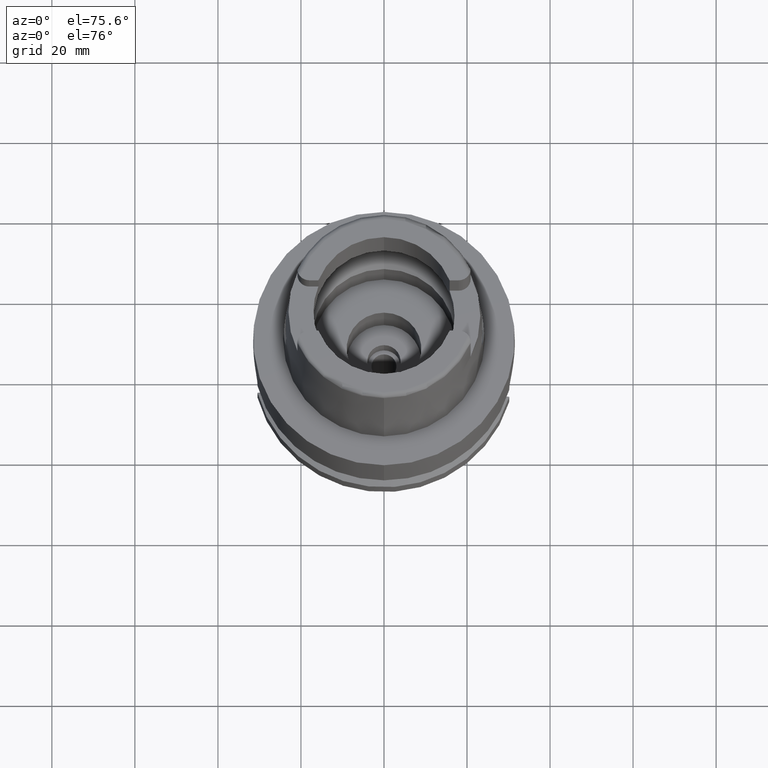
[diagram: clean part render]
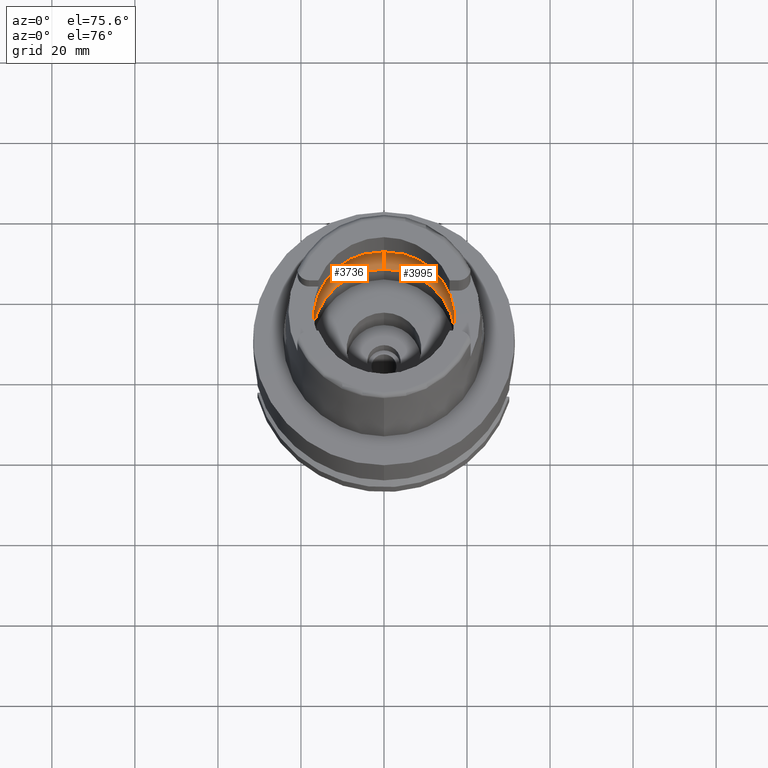
[diagram: same view with one multi-face feature highlighted, each face labeled with its STEP entity id]
A machine part, auxiliary view. The highlighted faces form ONE feature: a constant-radius fillet chain: 2 tangent blend faces with common blend radius 8 mm. The faces share edges in the B-rep.
Their STEP definitions:
[1] entity #3995 (Torus):
#24 = EDGE_CURVE ( 'NONE', #3711, #254, #3936, .T. ) ;
#30 = CIRCLE ( 'NONE', #2808, 20.00000000000000000 ) ;
#146 = CARTESIAN_POINT ( 'NONE',  ( 19.92466861724647842, 1.358322854854825179, 5.504643156173055552 ) ) ;
#169 = DIRECTION ( 'NONE',  ( 0.0000000000000000000, 0.0000000000000000000, -1.000000000000000000 ) ) ;
#173 = CARTESIAN_POINT ( 'NONE',  ( 19.88058488114089428, 2.158463974390028017, 5.925241924213342060 ) ) ;
#207 = AXIS2_PLACEMENT_3D ( 'NONE', #535, #5161, #3021 ) ;
#254 = VERTEX_POINT ( 'NONE', #5143 ) ;
#535 = CARTESIAN_POINT ( 'NONE',  ( 0.0000000000000000000, 1.300407714776999850E-14, 6.186348233825000875 ) ) ;
#610 = CARTESIAN_POINT ( 'NONE',  ( 19.84575864665999845, -2.479085262489999941, 6.186348233825000875 ) ) ;
#655 = DIRECTION ( 'NONE',  ( 0.0000000000000000000, 0.6562500000000006661, -0.7545435292281016393 ) ) ;
#726 = CIRCLE ( 'NONE', #3933, 7.999999999999992895 ) ;
#741 = CARTESIAN_POINT ( 'NONE',  ( 0.0000000000000000000, -20.00000000000000000, 6.186348233825000875 ) ) ;
#746 = CARTESIAN_POINT ( 'NONE',  ( 19.94501428475999916, -0.2480409057309866105, 5.249999999999999112 ) ) ;
#774 = EDGE_CURVE ( 'NONE', #3711, #2741, #2235, .T. ) ;
#824 = DIRECTION ( 'NONE',  ( 0.0000000000000000000, -1.000000000000000000, 0.0000000000000000000 ) ) ;
#857 = CARTESIAN_POINT ( 'NONE',  ( 19.94501428475999916, 0.0000000000000000000, 5.250000000000000000 ) ) ;
#1019 = ORIENTED_EDGE ( 'NONE', *, *, #774, .T. ) ;
#1040 = DIRECTION ( 'NONE',  ( 0.0000000000000000000, 1.000000000000000000, 0.0000000000000000000 ) ) ;
#1102 = CARTESIAN_POINT ( 'NONE',  ( 0.0000000000000000000, 1.300407714776999850E-14, 0.1500000000000999700 ) ) ;
#1115 = EDGE_CURVE ( 'NONE', #5113, #4521, #4823, .T. ) ;
#1205 = CARTESIAN_POINT ( 'NONE',  ( 19.92705252129803029, -1.287137646786902012, 5.477775250979194155 ) ) ;
#1227 = CARTESIAN_POINT ( 'NONE',  ( 19.94340172595015304, -0.4850964368296419305, 5.274618258025038919 ) ) ;
#1346 = CARTESIAN_POINT ( 'NONE',  ( 19.92546248860871927, 1.335239979082043948, 5.495763251848394759 ) ) ;
#1438 = CARTESIAN_POINT ( 'NONE',  ( 19.84575864665999845, 2.479085262491000030, 6.186348233825000875 ) ) ;
#1513 = ORIENTED_EDGE ( 'NONE', *, *, #4915, .F. ) ;
#1551 = EDGE_CURVE ( 'NONE', #4521, #2741, #1792, .T. ) ;
#1792 = CIRCLE ( 'NONE', #207, 20.00000000000001421 ) ;
#1832 = CARTESIAN_POINT ( 'NONE',  ( 19.92207737119581168, 1.430228553718336348, 5.533213232082355937 ) ) ;
#1888 = EDGE_CURVE ( 'NONE', #3442, #5113, #3426, .T. ) ;
#2051 = CARTESIAN_POINT ( 'NONE',  ( 19.93292009368618878, -1.081811675276309170, 5.409026469001385173 ) ) ;
#2067 = CARTESIAN_POINT ( 'NONE',  ( 0.0000000000000000000, -12.00000000000000000, 6.186348233825000875 ) ) ;
#2100 = CARTESIAN_POINT ( 'NONE',  ( 0.0000000000000000000, 1.300407714776999850E-14, 6.186348233825000875 ) ) ;
#2105 = CARTESIAN_POINT ( 'NONE',  ( 19.92839737014920942, -1.244570694301886604, 5.462384987445608076 ) ) ;
#2175 = TOROIDAL_SURFACE ( 'NONE', #2459, 12.00000000000000000, 8.000000000000000000 ) ;
#2226 = CARTESIAN_POINT ( 'NONE',  ( 19.84575864665999845, 2.479085262491000030, 6.186348233825000875 ) ) ;
#2230 = CARTESIAN_POINT ( 'NONE',  ( 19.92517033494197776, 1.343817989907872601, 5.499041037985621827 ) ) ;
#2235 = CIRCLE ( 'NONE', #5162, 7.999999999999992895 ) ;
#2459 = AXIS2_PLACEMENT_3D ( 'NONE', #2100, #2610, #4244 ) ;
#2535 = CARTESIAN_POINT ( 'NONE',  ( 19.84575864665999845, -2.479085262489999941, 6.186348233825000875 ) ) ;
#2610 = DIRECTION ( 'NONE',  ( 0.0000000000000000000, 0.0000000000000000000, -1.000000000000000000 ) ) ;
#2655 = CARTESIAN_POINT ( 'NONE',  ( 19.94501428475999916, 0.4961173928737935279, 5.250000000000000888 ) ) ;
#2741 = VERTEX_POINT ( 'NONE', #741 ) ;
#2808 = AXIS2_PLACEMENT_3D ( 'NONE', #3979, #169, #1040 ) ;
#2857 = ORIENTED_EDGE ( 'NONE', *, *, #3548, .F. ) ;
#2926 = CARTESIAN_POINT ( 'NONE',  ( 19.92646198462450258, -1.305240071194263773, 5.484478754908657550 ) ) ;
#2953 = CARTESIAN_POINT ( 'NONE',  ( 19.93654835100833367, -0.9262716855155007645, 5.364597633136126476 ) ) ;
#3021 = DIRECTION ( 'NONE',  ( 0.9922879323327794543, -0.1239542631244973381, 0.0000000000000000000 ) ) ;
#3163 = CARTESIAN_POINT ( 'NONE',  ( 19.86453694704406558, 2.328759808639310869, 6.053897721753374483 ) ) ;
#3293 = CARTESIAN_POINT ( 'NONE',  ( 19.93856404952061823, -0.8186975846318078620, 5.338708399480539768 ) ) ;
#3317 = ORIENTED_EDGE ( 'NONE', *, *, #24, .F. ) ;
#3426 = B_SPLINE_CURVE_WITH_KNOTS ( 'NONE', 3,
 ( #1438, #3163, #173, #4427, #3579, #4852, #3958, #1832, #3462, #146, #2230, #1346, #5259, #2655, #4790 ),
 .UNSPECIFIED., .F., .F.,
 ( 4, 2, 2, 1, 1, 1, 2, 2, 4 ),
 ( 0.0000000000000000000, 0.2500000000000076050, 0.3750000000000112688, 0.4375000000000131006, 0.4687500000000139333, 0.4843750000000144329, 0.4921875000000146549, 0.5000000000000147660, 1.000000000000000000 ),
 .UNSPECIFIED. ) ;
#3442 = VERTEX_POINT ( 'NONE', #2226 ) ;
#3462 = CARTESIAN_POINT ( 'NONE',  ( 19.92390804158324613, 1.380020403602153722, 5.513101011347385061 ) ) ;
#3548 = EDGE_CURVE ( 'NONE', #3586, #3442, #30, .T. ) ;
#3575 = CARTESIAN_POINT ( 'NONE',  ( 0.0000000000000000000, 20.00000000000000000, 6.186348233825000875 ) ) ;
#3579 = CARTESIAN_POINT ( 'NONE',  ( 19.90653742518825453, 1.770129897938285568, 5.691947325584132855 ) ) ;
#3586 = VERTEX_POINT ( 'NONE', #3575 ) ;
#3711 = VERTEX_POINT ( 'NONE', #5227 ) ;
#3933 = AXIS2_PLACEMENT_3D ( 'NONE', #4083, #4209, #655 ) ;
#3936 = CIRCLE ( 'NONE', #4730, 17.25000000000000000 ) ;
#3958 = CARTESIAN_POINT ( 'NONE',  ( 19.91819205506146773, 1.528957928330905380, 5.574902649599744464 ) ) ;
#3979 = CARTESIAN_POINT ( 'NONE',  ( 0.0000000000000000000, 1.300407714776999850E-14, 6.186348233825000875 ) ) ;
#3995 = ADVANCED_FACE ( 'NONE', ( #4719 ), #2175, .F. ) ;
#4083 = CARTESIAN_POINT ( 'NONE',  ( 0.0000000000000000000, 12.00000000000000000, 6.186348233825000875 ) ) ;
#4149 = CARTESIAN_POINT ( 'NONE',  ( 19.94501428475999916, 0.0000000000000000000, 5.250000000000000000 ) ) ;
#4209 = DIRECTION ( 'NONE',  ( 1.000000000000000000, 0.0000000000000000000, 0.0000000000000000000 ) ) ;
#4244 = DIRECTION ( 'NONE',  ( 0.0000000000000000000, -1.000000000000000000, 0.0000000000000000000 ) ) ;
#4427 = CARTESIAN_POINT ( 'NONE',  ( 19.90056123285527789, 1.871176222693615943, 5.748254233190306373 ) ) ;
#4453 = ORIENTED_EDGE ( 'NONE', *, *, #1115, .F. ) ;
#4514 = DIRECTION ( 'NONE',  ( 0.0000000000000000000, 0.0000000000000000000, 1.000000000000000000 ) ) ;
#4521 = VERTEX_POINT ( 'NONE', #610 ) ;
#4556 = DIRECTION ( 'NONE',  ( -1.000000000000000000, 0.0000000000000000000, 0.0000000000000000000 ) ) ;
#4602 = DIRECTION ( 'NONE',  ( 0.0000000000000000000, -0.6562500000000006661, -0.7545435292281016393 ) ) ;
#4612 = CARTESIAN_POINT ( 'NONE',  ( 19.92590906856741739, -1.321975393466675808, 5.490734853381008307 ) ) ;
#4620 = ORIENTED_EDGE ( 'NONE', *, *, #1888, .F. ) ;
#4640 = CARTESIAN_POINT ( 'NONE',  ( 19.93095478763670059, -1.158129320264685180, 5.432640215635148095 ) ) ;
#4673 = CARTESIAN_POINT ( 'NONE',  ( 19.92606514397989059, -1.317277072706851904, 5.488971321412958737 ) ) ;
#4719 = FACE_OUTER_BOUND ( 'NONE', #5166, .T. ) ;
#4730 = AXIS2_PLACEMENT_3D ( 'NONE', #1102, #4514, #824 ) ;
#4790 = CARTESIAN_POINT ( 'NONE',  ( 19.94501428475999916, 0.0000000000000000000, 5.250000000000000000 ) ) ;
#4823 = B_SPLINE_CURVE_WITH_KNOTS ( 'NONE', 3,
 ( #4149, #746, #1227, #3293, #2953, #2051, #4640, #2105, #1205, #2926, #4673, #4612, #5010, #5423, #2535 ),
 .UNSPECIFIED., .F., .F.,
 ( 4, 2, 2, 1, 1, 1, 2, 2, 4 ),
 ( 0.0000000000000000000, 0.2499999999999984457, 0.3749999999999977240, 0.4374999999999975020, 0.4687499999999973355, 0.4843749999999972244, 0.4921874999999972800, 0.4999999999999973355, 1.000000000000000000 ),
 .UNSPECIFIED. ) ;
#4852 = CARTESIAN_POINT ( 'NONE',  ( 19.91447782633000330, 1.610662747508702086, 5.612997844426586447 ) ) ;
#4915 = EDGE_CURVE ( 'NONE', #254, #3586, #726, .T. ) ;
#5010 = CARTESIAN_POINT ( 'NONE',  ( 19.90995224940896335, -1.795938227408923726, 5.670407759516152169 ) ) ;
#5113 = VERTEX_POINT ( 'NONE', #857 ) ;
#5143 = CARTESIAN_POINT ( 'NONE',  ( 0.0000000000000000000, 17.25000000000000000, 0.1500000000000999700 ) ) ;
#5161 = DIRECTION ( 'NONE',  ( 0.0000000000000000000, 0.0000000000000000000, -1.000000000000000000 ) ) ;
#5162 = AXIS2_PLACEMENT_3D ( 'NONE', #2067, #4556, #4602 ) ;
#5166 = EDGE_LOOP ( 'NONE', ( #4620, #2857, #1513, #3317, #1019, #5375, #4453 ) ) ;
#5227 = CARTESIAN_POINT ( 'NONE',  ( 0.0000000000000000000, -17.25000000000000000, 0.1500000000000999700 ) ) ;
#5259 = CARTESIAN_POINT ( 'NONE',  ( 19.93856420767916759, 0.9461146681545778980, 5.348252842338863999 ) ) ;
#5375 = ORIENTED_EDGE ( 'NONE', *, *, #1551, .F. ) ;
#5423 = CARTESIAN_POINT ( 'NONE',  ( 19.88331727194833576, -2.178418147926865611, 5.921432929951146562 ) ) ;
[2] entity #3736 (Torus):
#7 = CARTESIAN_POINT ( 'NONE',  ( -19.92517005465364477, -1.343825724865890026, 5.499044007117803723 ) ) ;
#181 = CARTESIAN_POINT ( 'NONE',  ( -19.90995255595169056, 1.795933884452548535, 5.670404923156593391 ) ) ;
#198 = CIRCLE ( 'NONE', #2423, 20.00000000000001421 ) ;
#203 = EDGE_CURVE ( 'NONE', #2741, #4409, #3406, .T. ) ;
#254 = VERTEX_POINT ( 'NONE', #5143 ) ;
#303 = DIRECTION ( 'NONE',  ( 0.0000000000000000000, 0.0000000000000000000, -1.000000000000000000 ) ) ;
#351 = EDGE_LOOP ( 'NONE', ( #5208, #740, #2986, #4498, #3989, #506, #2599 ) ) ;
#506 = ORIENTED_EDGE ( 'NONE', *, *, #4395, .F. ) ;
#561 = CARTESIAN_POINT ( 'NONE',  ( -19.92606541691252531, 1.317269316937897727, 5.488968411663657676 ) ) ;
#629 = B_SPLINE_CURVE_WITH_KNOTS ( 'NONE', 3,
 ( #1296, #2122, #3780, #3359, #2969, #3858, #2944, #5459, #889, #2606, #7, #4296, #808, #2183, #3802 ),
 .UNSPECIFIED., .F., .F.,
 ( 4, 2, 2, 1, 1, 1, 2, 2, 4 ),
 ( 0.0000000000000000000, 0.2500000000000004996, 0.3750000000000006106, 0.4375000000000004996, 0.4687500000000004996, 0.4843750000000006106, 0.4921875000000006661, 0.5000000000000006661, 1.000000000000000000 ),
 .UNSPECIFIED. ) ;
#655 = DIRECTION ( 'NONE',  ( 0.0000000000000000000, 0.6562500000000006661, -0.7545435292281016393 ) ) ;
#726 = CIRCLE ( 'NONE', #3933, 7.999999999999992895 ) ;
#740 = ORIENTED_EDGE ( 'NONE', *, *, #774, .F. ) ;
#741 = CARTESIAN_POINT ( 'NONE',  ( 0.0000000000000000000, -20.00000000000000000, 6.186348233825000875 ) ) ;
#774 = EDGE_CURVE ( 'NONE', #3711, #2741, #2235, .T. ) ;
#808 = CARTESIAN_POINT ( 'NONE',  ( -19.93856411452979316, -0.9461205214876701186, 5.348254081022309592 ) ) ;
#889 = CARTESIAN_POINT ( 'NONE',  ( -19.92390775950450532, -1.380027868491152443, 5.513103966555285673 ) ) ;
#1001 = EDGE_CURVE ( 'NONE', #4409, #1930, #629, .T. ) ;
#1018 = FACE_OUTER_BOUND ( 'NONE', #351, .T. ) ;
#1152 = DIRECTION ( 'NONE',  ( 0.0000000000000000000, 0.0000000000000000000, 1.000000000000000000 ) ) ;
#1294 = CARTESIAN_POINT ( 'NONE',  ( -19.93856414242614861, 0.8186925878071447116, 5.338707303697744599 ) ) ;
#1296 = CARTESIAN_POINT ( 'NONE',  ( -19.84575864665999845, -2.479085262491000030, 6.186348233825000875 ) ) ;
#1367 = DIRECTION ( 'NONE',  ( -0.9922879323327794543, 0.1239542631244973381, 0.0000000000000000000 ) ) ;
#1378 = CARTESIAN_POINT ( 'NONE',  ( -19.94501428475999916, 0.0000000000000000000, 5.250000000000000000 ) ) ;
#1417 = CARTESIAN_POINT ( 'NONE',  ( -19.92646225184126507, 1.305232378195160470, 5.484475898738186750 ) ) ;
#1453 = TOROIDAL_SURFACE ( 'NONE', #4402, 12.00000000000000000, 8.000000000000000000 ) ;
#1475 = CARTESIAN_POINT ( 'NONE',  ( -19.88331748558554679, 2.178416437689206564, 5.921431423074808187 ) ) ;
#1701 = B_SPLINE_CURVE_WITH_KNOTS ( 'NONE', 3,
 ( #2549, #5129, #2495, #1294, #5458, #4185, #2066, #5046, #3940, #1417, #561, #4800, #181, #1475, #5294 ),
 .UNSPECIFIED., .F., .F.,
 ( 4, 2, 2, 1, 1, 1, 2, 2, 4 ),
 ( 0.0000000000000000000, 0.2499999999999999445, 0.3749999999999998335, 0.4374999999999993894, 0.4687499999999992784, 0.4843749999999993894, 0.4921874999999996114, 0.4999999999999998335, 1.000000000000000000 ),
 .UNSPECIFIED. ) ;
#1893 = CARTESIAN_POINT ( 'NONE',  ( -19.84575864665999845, 2.479085262491000030, 6.186348233825000875 ) ) ;
#1930 = VERTEX_POINT ( 'NONE', #1378 ) ;
#2066 = CARTESIAN_POINT ( 'NONE',  ( -19.93095499014168226, 1.158122409084411109, 5.432637980145560874 ) ) ;
#2067 = CARTESIAN_POINT ( 'NONE',  ( 0.0000000000000000000, -12.00000000000000000, 6.186348233825000875 ) ) ;
#2122 = CARTESIAN_POINT ( 'NONE',  ( -19.86453683997870456, -2.328760665727150680, 6.053898476926370620 ) ) ;
#2130 = EDGE_CURVE ( 'NONE', #254, #3711, #2433, .T. ) ;
#2183 = CARTESIAN_POINT ( 'NONE',  ( -19.94501428476000271, -0.4961205090555425579, 5.249999999999998224 ) ) ;
#2235 = CIRCLE ( 'NONE', #5162, 7.999999999999992895 ) ;
#2273 = CARTESIAN_POINT ( 'NONE',  ( -19.84575864665999845, -2.479085262491000030, 6.186348233825000875 ) ) ;
#2423 = AXIS2_PLACEMENT_3D ( 'NONE', #3542, #4839, #1367 ) ;
#2433 = CIRCLE ( 'NONE', #4119, 17.25000000000000000 ) ;
#2495 = CARTESIAN_POINT ( 'NONE',  ( -19.94340174917653385, 0.4850934172101355468, 5.274617949540510331 ) ) ;
#2549 = CARTESIAN_POINT ( 'NONE',  ( -19.94501428475999916, 0.0000000000000000000, 5.250000000000000000 ) ) ;
#2599 = ORIENTED_EDGE ( 'NONE', *, *, #1001, .F. ) ;
#2606 = CARTESIAN_POINT ( 'NONE',  ( -19.92466833620654398, -1.358330481555162672, 5.504646120092099970 ) ) ;
#2741 = VERTEX_POINT ( 'NONE', #741 ) ;
#2843 = DIRECTION ( 'NONE',  ( 0.0000000000000000000, -1.000000000000000000, 0.0000000000000000000 ) ) ;
#2944 = CARTESIAN_POINT ( 'NONE',  ( -19.91819177005300645, -1.528964289322848114, 5.574905501562674282 ) ) ;
#2969 = CARTESIAN_POINT ( 'NONE',  ( -19.90653715571480120, -1.770134510244638193, 5.691949820981152541 ) ) ;
#2986 = ORIENTED_EDGE ( 'NONE', *, *, #2130, .F. ) ;
#3359 = CARTESIAN_POINT ( 'NONE',  ( -19.90056097910782995, -1.871180122140724489, 5.748256501260665452 ) ) ;
#3406 = CIRCLE ( 'NONE', #3762, 20.00000000000000000 ) ;
#3542 = CARTESIAN_POINT ( 'NONE',  ( 0.0000000000000000000, 1.300407714776999850E-14, 6.186348233825000875 ) ) ;
#3575 = CARTESIAN_POINT ( 'NONE',  ( 0.0000000000000000000, 20.00000000000000000, 6.186348233825000875 ) ) ;
#3586 = VERTEX_POINT ( 'NONE', #3575 ) ;
#3711 = VERTEX_POINT ( 'NONE', #5227 ) ;
#3736 = ADVANCED_FACE ( 'NONE', ( #1018 ), #1453, .F. ) ;
#3741 = DIRECTION ( 'NONE',  ( 0.0000000000000000000, 0.0000000000000000000, -1.000000000000000000 ) ) ;
#3762 = AXIS2_PLACEMENT_3D ( 'NONE', #3767, #3741, #5371 ) ;
#3767 = CARTESIAN_POINT ( 'NONE',  ( 0.0000000000000000000, 1.300407714776999850E-14, 6.186348233825000875 ) ) ;
#3780 = CARTESIAN_POINT ( 'NONE',  ( -19.88058469725548960, -2.158465908504980213, 5.925243384237681710 ) ) ;
#3802 = CARTESIAN_POINT ( 'NONE',  ( -19.94501428475999916, 0.0000000000000000000, 5.250000000000000000 ) ) ;
#3858 = CARTESIAN_POINT ( 'NONE',  ( -19.91447754460955721, -1.610668511863835306, 5.613000592307881398 ) ) ;
#3933 = AXIS2_PLACEMENT_3D ( 'NONE', #4083, #4209, #655 ) ;
#3940 = CARTESIAN_POINT ( 'NONE',  ( -19.92705278000903846, 1.287130048445782382, 5.477772474800913116 ) ) ;
#3989 = ORIENTED_EDGE ( 'NONE', *, *, #4825, .F. ) ;
#4009 = CARTESIAN_POINT ( 'NONE',  ( 0.0000000000000000000, 1.300407714776999850E-14, 6.186348233825000875 ) ) ;
#4083 = CARTESIAN_POINT ( 'NONE',  ( 0.0000000000000000000, 12.00000000000000000, 6.186348233825000875 ) ) ;
#4119 = AXIS2_PLACEMENT_3D ( 'NONE', #4934, #1152, #4540 ) ;
#4185 = CARTESIAN_POINT ( 'NONE',  ( -19.93292026788402538, 1.081805184546577481, 5.409024518554498506 ) ) ;
#4209 = DIRECTION ( 'NONE',  ( 1.000000000000000000, 0.0000000000000000000, 0.0000000000000000000 ) ) ;
#4296 = CARTESIAN_POINT ( 'NONE',  ( -19.92546220624969067, -1.335247853971804455, 5.495766252403495145 ) ) ;
#4395 = EDGE_CURVE ( 'NONE', #1930, #5342, #1701, .T. ) ;
#4402 = AXIS2_PLACEMENT_3D ( 'NONE', #4009, #303, #2843 ) ;
#4409 = VERTEX_POINT ( 'NONE', #2273 ) ;
#4498 = ORIENTED_EDGE ( 'NONE', *, *, #4915, .T. ) ;
#4540 = DIRECTION ( 'NONE',  ( 0.0000000000000000000, 1.000000000000000000, 0.0000000000000000000 ) ) ;
#4556 = DIRECTION ( 'NONE',  ( -1.000000000000000000, 0.0000000000000000000, 0.0000000000000000000 ) ) ;
#4602 = DIRECTION ( 'NONE',  ( 0.0000000000000000000, -0.6562500000000006661, -0.7545435292281016393 ) ) ;
#4800 = CARTESIAN_POINT ( 'NONE',  ( -19.92590934684917769, 1.321967521133246448, 5.490731887689705992 ) ) ;
#4825 = EDGE_CURVE ( 'NONE', #5342, #3586, #198, .T. ) ;
#4839 = DIRECTION ( 'NONE',  ( 0.0000000000000000000, 0.0000000000000000000, -1.000000000000000000 ) ) ;
#4915 = EDGE_CURVE ( 'NONE', #254, #3586, #726, .T. ) ;
#4934 = CARTESIAN_POINT ( 'NONE',  ( 0.0000000000000000000, 1.300407714776999850E-14, 0.1500000000000999700 ) ) ;
#5046 = CARTESIAN_POINT ( 'NONE',  ( -19.92839760948977812, 1.244563320345577928, 5.462382395228216225 ) ) ;
#5129 = CARTESIAN_POINT ( 'NONE',  ( -19.94501428476000982, 0.2480393544993953481, 5.249999999999997335 ) ) ;
#5143 = CARTESIAN_POINT ( 'NONE',  ( 0.0000000000000000000, 17.25000000000000000, 0.1500000000000999700 ) ) ;
#5162 = AXIS2_PLACEMENT_3D ( 'NONE', #2067, #4556, #4602 ) ;
#5208 = ORIENTED_EDGE ( 'NONE', *, *, #203, .F. ) ;
#5227 = CARTESIAN_POINT ( 'NONE',  ( 0.0000000000000000000, -17.25000000000000000, 0.1500000000000999700 ) ) ;
#5294 = CARTESIAN_POINT ( 'NONE',  ( -19.84575864665999845, 2.479085262491000030, 6.186348233825000875 ) ) ;
#5342 = VERTEX_POINT ( 'NONE', #1893 ) ;
#5371 = DIRECTION ( 'NONE',  ( 0.0000000000000000000, -1.000000000000000000, 0.0000000000000000000 ) ) ;
#5458 = CARTESIAN_POINT ( 'NONE',  ( -19.93654847294682142, 0.9262660664357793561, 5.364596220942165594 ) ) ;
#5459 = CARTESIAN_POINT ( 'NONE',  ( -19.92207708731347537, -1.430235645114882326, 5.533216160818618334 ) ) ;